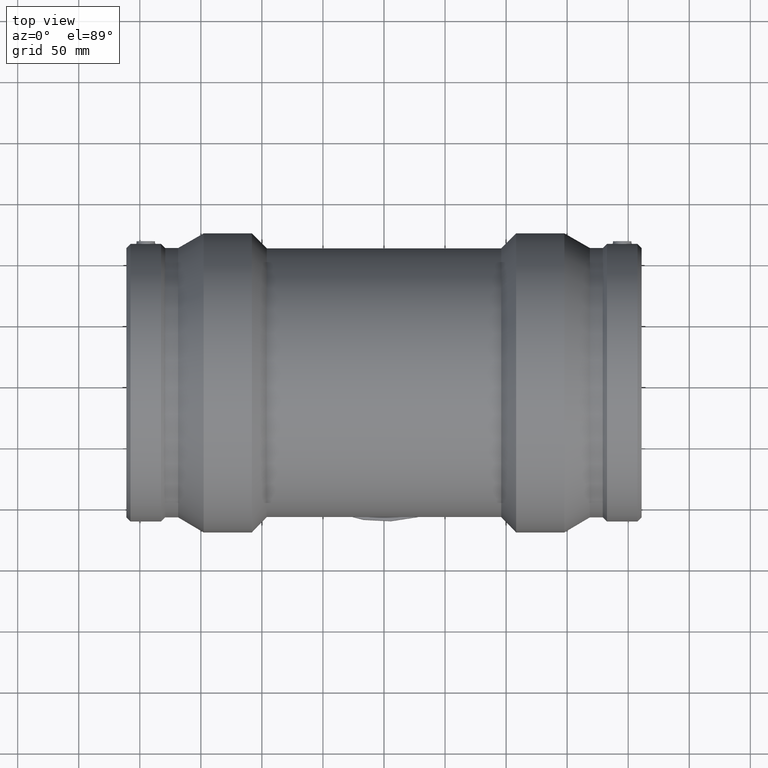
[diagram: clean part render]
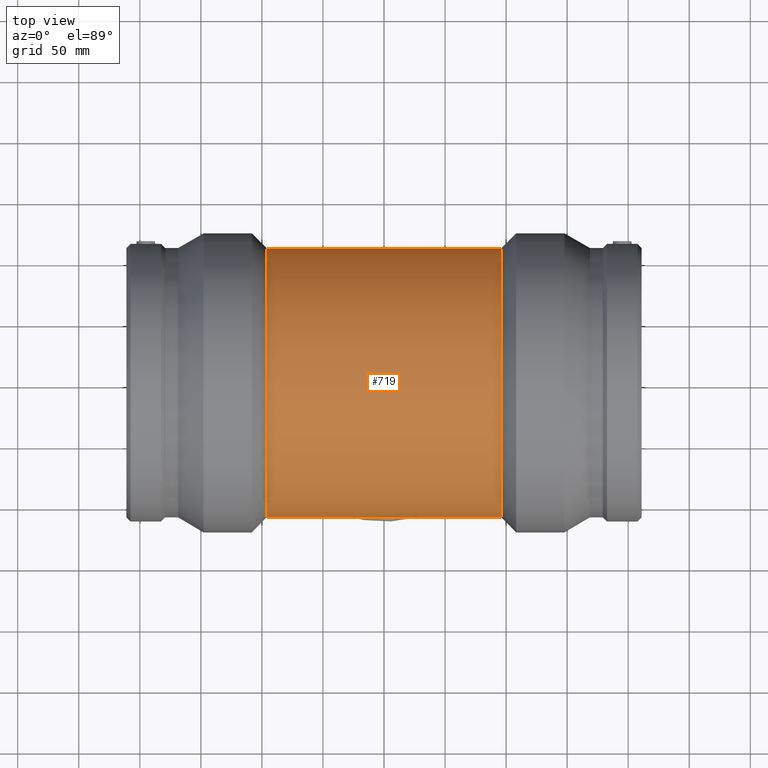
[diagram: same view with one face highlighted and labeled with its STEP entity id]
A machine part, top view. The second image highlights one B-rep face of the part: STEP entity #719.
In plain terms, the highlighted cylindrical surface (bore or boss wall) has radius 110.25 mm, axis along (1, 0, 0).
Its self-contained STEP definition (entity closure, byte-faithful):
#79=FACE_BOUND('',#331,.T.);
#80=FACE_BOUND('',#332,.T.);
#147=CIRCLE('',#807,110.25);
#148=CIRCLE('',#808,110.25);
#199=CYLINDRICAL_SURFACE('',#806,110.25);
#235=FACE_OUTER_BOUND('',#330,.T.);
#330=EDGE_LOOP('',(#616));
#331=EDGE_LOOP('',(#617));
#332=EDGE_LOOP('',(#618));
#416=B_SPLINE_CURVE_WITH_KNOTS('',3,(#1453,#1454,#1455,#1456,#1457,#1458,
#1459,#1460,#1461,#1462,#1463,#1464,#1465,#1466,#1467,#1468,#1469,#1470,
#1471,#1472,#1473,#1474,#1475,#1476,#1477,#1478,#1479,#1480,#1481,#1482,
#1483,#1484,#1485,#1486,#1487,#1488,#1489,#1490,#1491,#1492,#1493,#1494,
#1495,#1496,#1497,#1498,#1499,#1500,#1501,#1502,#1503,#1504,#1505,#1506,
#1507,#1508,#1509,#1510,#1511,#1512,#1513,#1514,#1515,#1516,#1517,#1518),
 .UNSPECIFIED.,.T.,.F.,(4,2,2,2,2,2,2,2,2,2,2,2,2,2,2,2,2,2,2,2,2,2,2,2,
2,2,2,2,2,2,2,2,4),(0.,1.21250836443901,2.42501672887802,3.63752509331703,
4.85003345775604,6.05660015064209,7.26316684352815,8.4697335364142,9.67630022930025,
10.8828669221863,12.0894336150724,13.2960003079584,14.5025670008445,15.7150753652835,
16.9275837297225,18.1400920941615,19.3526004586005,20.5651088230395,21.7776171874785,
22.9901255519175,24.2026339163565,25.4092006092426,26.6157673021286,27.8223339950147,
29.0289006879008,30.2354673807868,31.4420340736729,32.6486007665589,33.855167459445,
35.067675823884,36.280184188323,37.492692552762,38.705200917201),
 .UNSPECIFIED.);
#439=VERTEX_POINT('',#1452);
#448=VERTEX_POINT('',#1545);
#449=VERTEX_POINT('',#1547);
#509=EDGE_CURVE('',#439,#439,#416,.T.);
#518=EDGE_CURVE('',#448,#448,#147,.T.);
#519=EDGE_CURVE('',#449,#449,#148,.T.);
#616=ORIENTED_EDGE('',*,*,#518,.F.);
#617=ORIENTED_EDGE('',*,*,#519,.T.);
#618=ORIENTED_EDGE('',*,*,#509,.T.);
#719=ADVANCED_FACE('',(#235,#79,#80),#199,.T.);
#806=AXIS2_PLACEMENT_3D('',#1544,#977,#978);
#807=AXIS2_PLACEMENT_3D('',#1546,#979,#980);
#808=AXIS2_PLACEMENT_3D('',#1548,#981,#982);
#977=DIRECTION('center_axis',(1.,0.,0.));
#978=DIRECTION('ref_axis',(0.,1.,0.));
#979=DIRECTION('center_axis',(1.,0.,0.));
#980=DIRECTION('ref_axis',(0.,0.,-1.));
#981=DIRECTION('center_axis',(1.,0.,0.));
#982=DIRECTION('ref_axis',(0.,0.,-1.));
#1452=CARTESIAN_POINT('',(-1.4432899320127E-14,62.5,-90.8229734153204));
#1453=CARTESIAN_POINT('Ctrl Pts',(-1.4432899320127E-14,62.5,-90.8229734153204));
#1454=CARTESIAN_POINT('Ctrl Pts',(-4.04169454813005,62.5,-90.8229734153204));
#1455=CARTESIAN_POINT('Ctrl Pts',(-8.17812456369342,62.1019801024526,-91.1008700003));
#1456=CARTESIAN_POINT('Ctrl Pts',(-16.3323787074012,60.4714070148073,-92.1912868711885));
#1457=CARTESIAN_POINT('Ctrl Pts',(-20.350670671322,59.2396443451654,-93.0014893238529));
#1458=CARTESIAN_POINT('Ctrl Pts',(-28.0073612757279,56.027440055476,-94.9712460763303));
#1459=CARTESIAN_POINT('Ctrl Pts',(-31.6535497332081,54.0444085839734,-96.129637400072));
#1460=CARTESIAN_POINT('Ctrl Pts',(-38.3817480753251,49.4932998167347,-98.5500814694855));
#1461=CARTESIAN_POINT('Ctrl Pts',(-41.4639512422995,46.924396406019,-99.810043088883));
#1462=CARTESIAN_POINT('Ctrl Pts',(-46.9110174584392,41.4773301898792,-102.193384971456));
#1463=CARTESIAN_POINT('Ctrl Pts',(-49.4778236598816,38.401941879161,-103.40672112215));
#1464=CARTESIAN_POINT('Ctrl Pts',(-54.0340192880803,31.6715792933651,-105.662529678831));
#1465=CARTESIAN_POINT('Ctrl Pts',(-56.0237476999673,28.0163116937688,-106.703441969419));
#1466=CARTESIAN_POINT('Ctrl Pts',(-59.2440623863259,20.3399904592126,-108.428884848495));
#1467=CARTESIAN_POINT('Ctrl Pts',(-60.4772407062152,16.3112945852639,-109.113948375093));
#1468=CARTESIAN_POINT('Ctrl Pts',(-62.1055104076652,8.15233411843586,-110.024776798363));
#1469=CARTESIAN_POINT('Ctrl Pts',(-62.5,4.02188897628684,-110.25));
#1470=CARTESIAN_POINT('Ctrl Pts',(-62.5,-4.02188897628685,-110.25));
#1471=CARTESIAN_POINT('Ctrl Pts',(-62.1055104076651,-8.15233411843587,-110.024776798363));
#1472=CARTESIAN_POINT('Ctrl Pts',(-60.4772407062152,-16.3112945852639,-109.113948375093));
#1473=CARTESIAN_POINT('Ctrl Pts',(-59.2440623863259,-20.3399904592126,-108.428884848495));
#1474=CARTESIAN_POINT('Ctrl Pts',(-56.0237476999673,-28.0163116937688,-106.703441969419));
#1475=CARTESIAN_POINT('Ctrl Pts',(-54.0340192880803,-31.6715792933651,-105.662529678831));
#1476=CARTESIAN_POINT('Ctrl Pts',(-49.4778236598816,-38.401941879161,-103.40672112215));
#1477=CARTESIAN_POINT('Ctrl Pts',(-46.9110174584392,-41.4773301898792,-102.193384971456));
#1478=CARTESIAN_POINT('Ctrl Pts',(-41.4639512422995,-46.924396406019,-99.810043088883));
#1479=CARTESIAN_POINT('Ctrl Pts',(-38.3817480753251,-49.4932998167347,-98.5500814694855));
#1480=CARTESIAN_POINT('Ctrl Pts',(-31.6535497332081,-54.0444085839734,-96.129637400072));
#1481=CARTESIAN_POINT('Ctrl Pts',(-28.0073612757279,-56.0274400554761,-94.9712460763303));
#1482=CARTESIAN_POINT('Ctrl Pts',(-20.350670671322,-59.2396443451654,-93.0014893238529));
#1483=CARTESIAN_POINT('Ctrl Pts',(-16.3323787074012,-60.4714070148073,-92.1912868711885));
#1484=CARTESIAN_POINT('Ctrl Pts',(-8.17812456369344,-62.1019801024526,-91.1008700003));
#1485=CARTESIAN_POINT('Ctrl Pts',(-4.04169454813005,-62.5,-90.8229734153204));
#1486=CARTESIAN_POINT('Ctrl Pts',(4.04169454813001,-62.5,-90.8229734153204));
#1487=CARTESIAN_POINT('Ctrl Pts',(8.17812456369339,-62.1019801024527,-91.1008700003));
#1488=CARTESIAN_POINT('Ctrl Pts',(16.3323787074011,-60.4714070148073,-92.1912868711885));
#1489=CARTESIAN_POINT('Ctrl Pts',(20.3506706713219,-59.2396443451654,-93.0014893238529));
#1490=CARTESIAN_POINT('Ctrl Pts',(28.0073612757278,-56.0274400554761,-94.9712460763302));
#1491=CARTESIAN_POINT('Ctrl Pts',(31.6535497332081,-54.0444085839734,-96.129637400072));
#1492=CARTESIAN_POINT('Ctrl Pts',(38.3817480753251,-49.4932998167347,-98.5500814694855));
#1493=CARTESIAN_POINT('Ctrl Pts',(41.4639512422995,-46.924396406019,-99.810043088883));
#1494=CARTESIAN_POINT('Ctrl Pts',(46.9110174584392,-41.4773301898793,-102.193384971456));
#1495=CARTESIAN_POINT('Ctrl Pts',(49.4778236598816,-38.401941879161,-103.40672112215));
#1496=CARTESIAN_POINT('Ctrl Pts',(54.0340192880803,-31.6715792933651,-105.662529678831));
#1497=CARTESIAN_POINT('Ctrl Pts',(56.0237476999672,-28.0163116937688,-106.703441969419));
#1498=CARTESIAN_POINT('Ctrl Pts',(59.2440623863259,-20.3399904592126,-108.428884848495));
#1499=CARTESIAN_POINT('Ctrl Pts',(60.4772407062151,-16.3112945852639,-109.113948375093));
#1500=CARTESIAN_POINT('Ctrl Pts',(62.1055104076651,-8.15233411843587,-110.024776798363));
#1501=CARTESIAN_POINT('Ctrl Pts',(62.5,-4.02188897628685,-110.25));
#1502=CARTESIAN_POINT('Ctrl Pts',(62.5,4.02188897628685,-110.25));
#1503=CARTESIAN_POINT('Ctrl Pts',(62.1055104076651,8.15233411843588,-110.024776798363));
#1504=CARTESIAN_POINT('Ctrl Pts',(60.4772407062151,16.311294585264,-109.113948375093));
#1505=CARTESIAN_POINT('Ctrl Pts',(59.2440623863259,20.3399904592126,-108.428884848495));
#1506=CARTESIAN_POINT('Ctrl Pts',(56.0237476999672,28.0163116937688,-106.703441969419));
#1507=CARTESIAN_POINT('Ctrl Pts',(54.0340192880803,31.6715792933651,-105.662529678831));
#1508=CARTESIAN_POINT('Ctrl Pts',(49.4778236598816,38.401941879161,-103.40672112215));
#1509=CARTESIAN_POINT('Ctrl Pts',(46.9110174584392,41.4773301898792,-102.193384971456));
#1510=CARTESIAN_POINT('Ctrl Pts',(41.4639512422995,46.924396406019,-99.810043088883));
#1511=CARTESIAN_POINT('Ctrl Pts',(38.3817480753251,49.4932998167347,-98.5500814694855));
#1512=CARTESIAN_POINT('Ctrl Pts',(31.6535497332081,54.0444085839734,-96.129637400072));
#1513=CARTESIAN_POINT('Ctrl Pts',(28.0073612757278,56.0274400554761,-94.9712460763302));
#1514=CARTESIAN_POINT('Ctrl Pts',(20.3506706713219,59.2396443451654,-93.0014893238529));
#1515=CARTESIAN_POINT('Ctrl Pts',(16.3323787074011,60.4714070148073,-92.1912868711885));
#1516=CARTESIAN_POINT('Ctrl Pts',(8.17812456369341,62.1019801024527,-91.1008700003));
#1517=CARTESIAN_POINT('Ctrl Pts',(4.04169454813002,62.5,-90.8229734153204));
#1518=CARTESIAN_POINT('Ctrl Pts',(-1.11022302462516E-14,62.5,-90.8229734153204));
#1544=CARTESIAN_POINT('Origin',(0.,0.,0.));
#1545=CARTESIAN_POINT('',(96.005,110.25,0.));
#1546=CARTESIAN_POINT('Origin',(96.005,0.,0.));
#1547=CARTESIAN_POINT('',(-96.005,110.25,0.));
#1548=CARTESIAN_POINT('Origin',(-96.005,0.,0.));